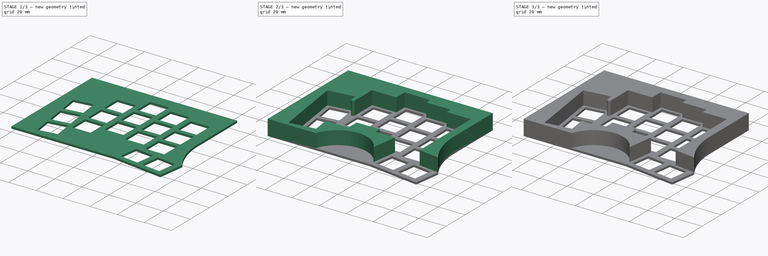
[diagram: build sequence overview — one tinted view per stage of 3, left to right]
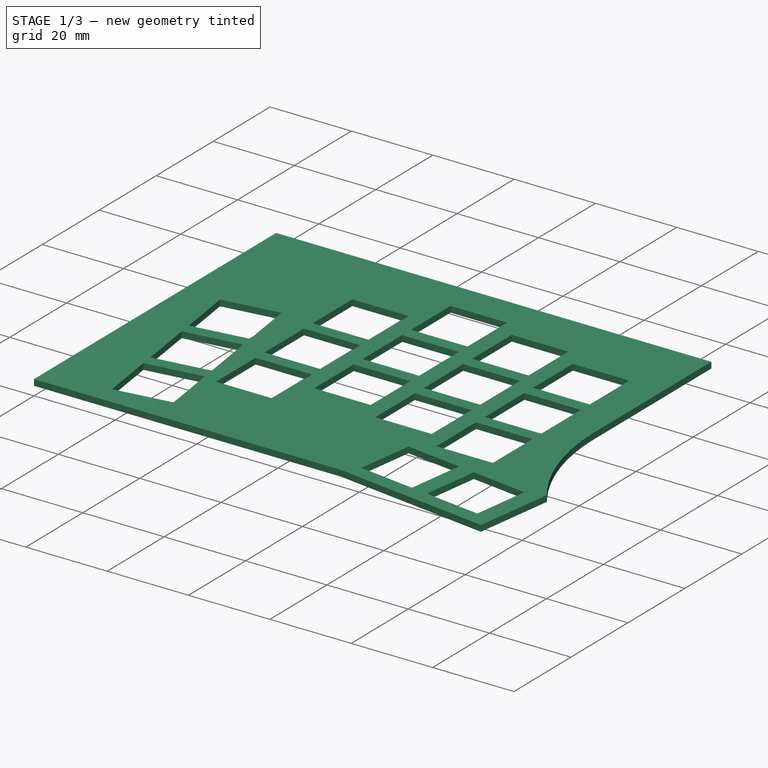
[diagram: stage 1 of 3 — iso view after this stage's code; geometry added in this stage tinted green]
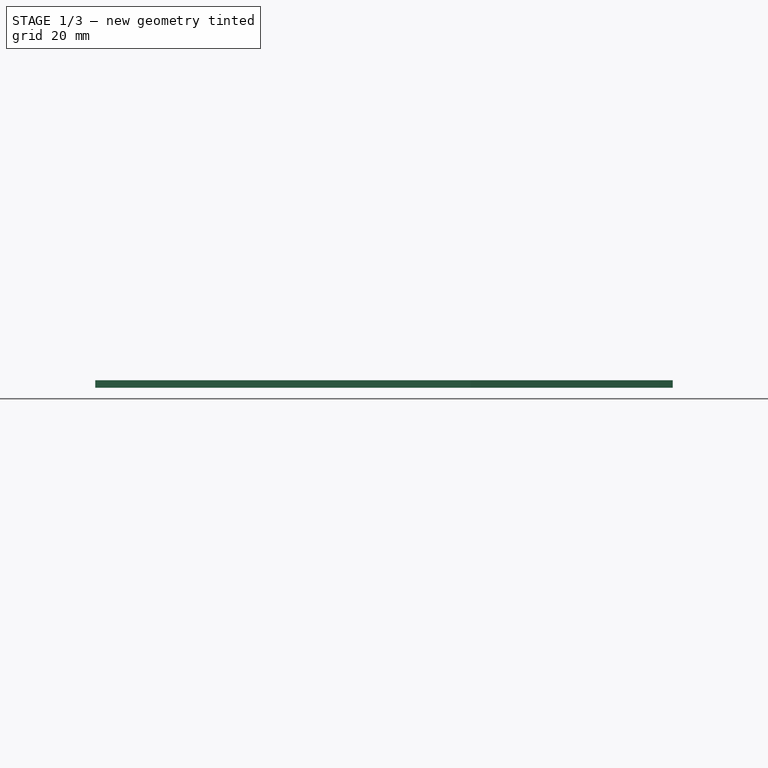
[diagram: stage 1 of 3 — front view after this stage's code; geometry added in this stage tinted green]
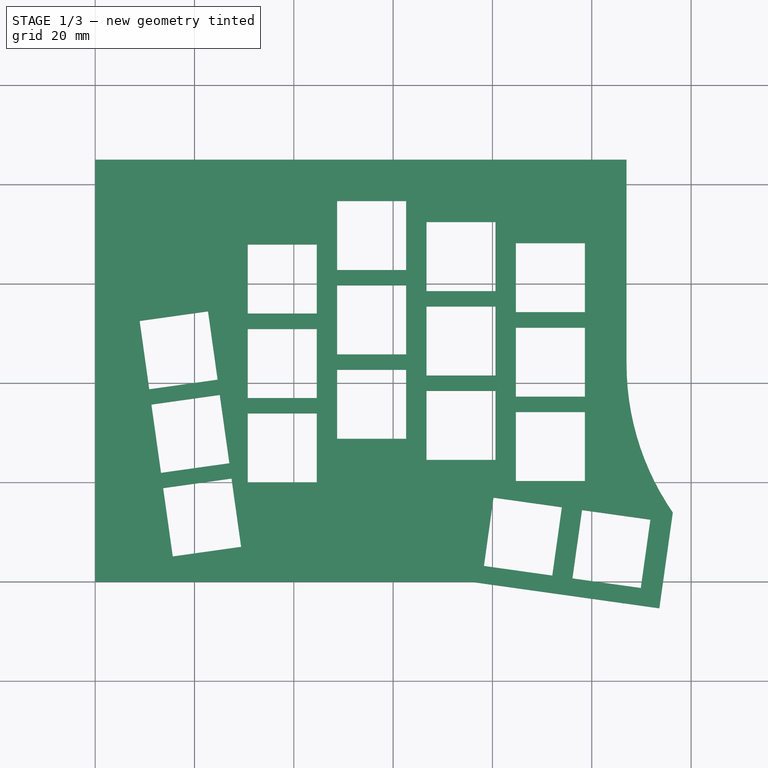
[diagram: stage 1 of 3 — top view after this stage's code; geometry added in this stage tinted green]
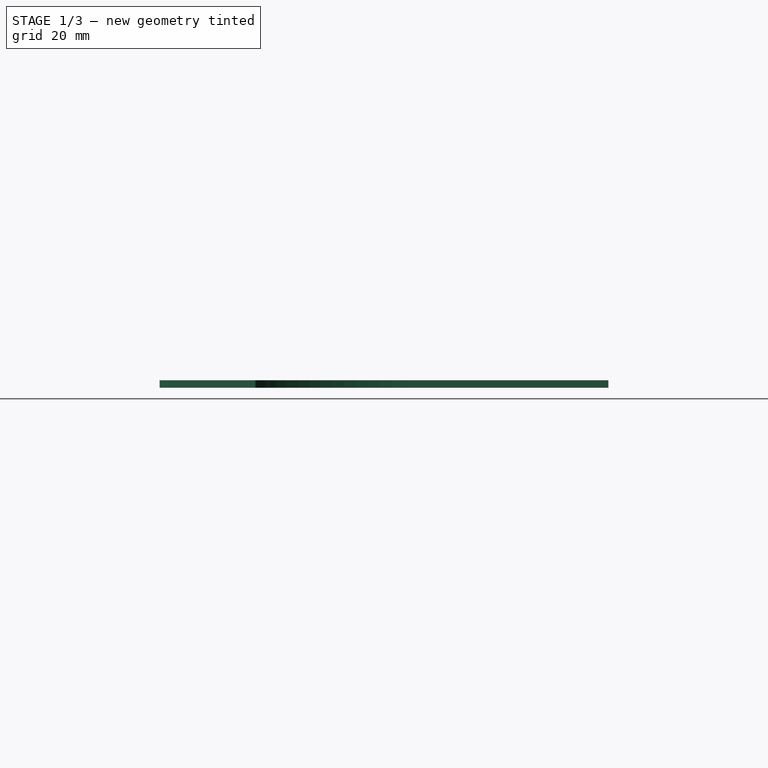
[diagram: stage 1 of 3 — right view after this stage's code; geometry added in this stage tinted green]
FCSTD DOCUMENT  (FreeCAD 1.0R39285 (Git))
Label: wave_case
License: All rights reserved
LicenseURL: https://en.wikipedia.org/wiki/All_rights_reserved
objects: Sketcher::SketchObject×4, PartDesign::Pocket×3, PartDesign::Pad×2, App::VarSet×1, PartDesign::Body×1
note: 24 computed .brp shape members not serialized (recipe doc carries the construction recipe); baked Part::Feature solids carry a one-line shape summary decoded from their .brp

FEATURE [App::VarSet] VarSet
  ChocHoleHeight = 13.9
  ChocHoleWidth = 13.9
  ChocHorizontalSpacing = 5
  ChocVerticalSpacing = 0.2
  KeycapHorizontalClearance = 2.52
  KeycapVerticalClearance = 2.05
FEATURE [Sketcher::SketchObject] Sketch002
  ArcFitTolerance = 1e-06
  FullyConstrained = false
  MakeInternals = false
  expr: Constraints[316] = VarSet.KeycapVerticalClearance
  expr: Constraints[317] = VarSet.KeycapHorizontalClearance
  expr: Constraints[318] = VarSet.KeycapVerticalClearance
  expr: Constraints[319] = VarSet.KeycapHorizontalClearance
  expr: Constraints[320] = VarSet.KeycapVerticalClearance
  expr: Constraints[321] = VarSet.KeycapHorizontalClearance
  expr: Constraints[322] = VarSet.KeycapHorizontalClearance
  expr: Constraints[323] = VarSet.KeycapHorizontalClearance
  expr: Constraints[324] = VarSet.KeycapVerticalClearance
  expr: Constraints[334] = VarSet.KeycapVerticalClearance
  expr: Constraints[335] = VarSet.KeycapHorizontalClearance
  expr: Constraints[337] = VarSet.KeycapHorizontalClearance
  expr: Constraints[339] = VarSet.KeycapVerticalClearance
  expr: Constraints[343] = VarSet.KeycapHorizontalClearance
  expr: Constraints[344] = VarSet.KeycapVerticalClearance
  expr: Constraints[345] = VarSet.KeycapHorizontalClearance
  expr: Constraints[346] = VarSet.KeycapVerticalClearance
  expr: Constraints[347] = VarSet.KeycapVerticalClearance
  expr: Constraints[348] = VarSet.KeycapHorizontalClearance
  expr: Constraints[353] = VarSet.KeycapHorizontalClearance
  expr: Constraints[354] = VarSet.KeycapVerticalClearance
  sketch-geometry (135):
    g0: LineSegment StartX=13.4096 StartY=2.70473 StartZ=0 EndX=32.1653 EndY=5.34067 EndZ=0
    g1: LineSegment StartX=32.1653 StartY=5.34067 StartZ=0 EndX=30.3932 EndY=17.95 EndZ=0
    g2: LineSegment StartX=6.17261 StartY=54.1987 StartZ=0 EndX=13.4096 EndY=2.70473 EndZ=0
    g3: LineSegment StartX=24.9283 StartY=56.8346 StartZ=0 EndX=25.6457 EndY=51.7296 EndZ=0
    g4: LineSegment StartX=24.9283 StartY=56.8346 StartZ=0 EndX=6.17261 EndY=54.1987 EndZ=0
    g5: LineSegment StartX=30.3932 StartY=17.95 StartZ=0 EndX=47.14 EndY=17.95 EndZ=0
    g6: LineSegment StartX=47.14 StartY=17.95 StartZ=0 EndX=47.14 EndY=26.73 EndZ=0
    g7: LineSegment StartX=28.2 StartY=51.9082 StartZ=0 EndX=28.2 EndY=69.95 EndZ=0
    g8: LineSegment StartX=46.2 StartY=69.95 StartZ=0 EndX=28.2 EndY=69.95 EndZ=0
    g9: LineSegment StartX=47.14 StartY=26.73 StartZ=0 EndX=64.2 EndY=26.73 EndZ=0
    g10: LineSegment StartX=65.14 StartY=74.48 StartZ=0 EndX=65.14 EndY=78.73 EndZ=0
    g11: LineSegment StartX=65.14 StartY=78.73 StartZ=0 EndX=46.2 EndY=78.73 EndZ=0
    g12: LineSegment StartX=46.2 StartY=78.73 StartZ=0 EndX=46.2 EndY=69.95 EndZ=0
    g13: LineSegment StartX=64.2 StartY=22.48 StartZ=0 EndX=78.4497 EndY=22.48 EndZ=0
    g14: LineSegment StartX=64.2 StartY=26.73 StartZ=0 EndX=64.2 EndY=22.48 EndZ=0
    g15: LineSegment StartX=83.14 StartY=70.23 StartZ=0 EndX=83.14 EndY=74.48 EndZ=0
    g16: LineSegment StartX=83.14 StartY=74.48 StartZ=0 EndX=65.14 EndY=74.48 EndZ=0
    g17: LineSegment StartX=101.14 StartY=16.0645 StartZ=0 EndX=101.14 EndY=70.23 EndZ=0
    g18: LineSegment StartX=101.14 StartY=70.23 StartZ=0 EndX=83.14 EndY=70.23 EndZ=0
    g19: LineSegment StartX=78.4497 StartY=22.48 StartZ=0 EndX=75.7852 EndY=3.52111 EndZ=0
    g20: ArcOfCircle CenterX=56.4906 CenterY=-7.04857 CenterZ=0 NormalX=0 NormalY=0 NormalZ=1 AngleXU=0 Radius=22 StartAngle=0.501156 EndAngle=2.81545
    g21: Circle CenterX=8.07 CenterY=77.9 CenterZ=0 NormalX=0 NormalY=0 NormalZ=-1 AngleXU=0 Radius=5.1
    g22: Circle CenterX=98.87 CenterY=77.9 CenterZ=0 NormalX=0 NormalY=0 NormalZ=-1 AngleXU=0 Radius=5.1
    g23: Circle CenterX=6.57 CenterY=7.1 CenterZ=0 NormalX=0 NormalY=0 NormalZ=-1 AngleXU=0 Radius=5.1
    g24: LineSegment StartX=75.5469 StartY=0 StartZ=0 EndX=113.609 EndY=-5.34925 EndZ=0
    g25: LineSegment StartX=113.609 StartY=-5.34925 StartZ=0 EndX=116.318 EndY=13.9313 EndZ=0
    g26: ArcOfCircle CenterX=159.721 CenterY=43.86 CenterZ=0 NormalX=0 NormalY=0 NormalZ=1 AngleXU=0 Radius=52.7212 StartAngle=3.14159 EndAngle=3.74528
    g27: LineSegment StartX=0 StartY=0 StartZ=0 EndX=75.5469 EndY=0 EndZ=0
    g28: LineSegment StartX=107 StartY=43.86 StartZ=0 EndX=107 EndY=85 EndZ=0
    g29: LineSegment StartX=107 StartY=85 StartZ=0 EndX=0 EndY=85 EndZ=0
    g30: LineSegment StartX=0 StartY=85 StartZ=0 EndX=0 EndY=0 EndZ=0
    g31: LineSegment StartX=98.62 StartY=54.28 StartZ=0 EndX=98.62 EndY=68.18 EndZ=0
    g32: LineSegment StartX=84.72 StartY=68.18 StartZ=0 EndX=84.72 EndY=54.28 EndZ=0
    g33: LineSegment StartX=84.72 StartY=54.28 StartZ=0 EndX=98.62 EndY=54.28 EndZ=0
    g34: LineSegment StartX=98.62 StartY=54.28 StartZ=0 EndX=98.62 EndY=68.18 EndZ=0
    g35: LineSegment StartX=98.62 StartY=68.18 StartZ=0 EndX=84.72 EndY=68.18 EndZ=0
    g36: LineSegment StartX=84.72 StartY=68.18 StartZ=0 EndX=84.72 EndY=54.28 EndZ=0
    g37: LineSegment [constr] StartX=84.72 StartY=54.28 StartZ=0 EndX=84.72 EndY=51.18 EndZ=0
    g38: LineSegment StartX=84.72 StartY=51.18 StartZ=0 EndX=84.72 EndY=37.28 EndZ=0
    g39: LineSegment StartX=84.72 StartY=37.28 StartZ=0 EndX=98.62 EndY=37.28 EndZ=0
    g40: LineSegment StartX=98.62 StartY=37.28 StartZ=0 EndX=98.62 EndY=51.18 EndZ=0
    g41: LineSegment StartX=98.62 StartY=51.18 StartZ=0 EndX=84.72 EndY=51.18 EndZ=0
    g42: LineSegment StartX=84.72 StartY=34.18 StartZ=0 EndX=84.72 EndY=20.28 EndZ=0
    g43: LineSegment StartX=84.72 StartY=20.28 StartZ=0 EndX=98.62 EndY=20.28 EndZ=0
    g44: LineSegment StartX=98.62 StartY=20.28 StartZ=0 EndX=98.62 EndY=34.18 EndZ=0
    g45: LineSegment StartX=98.62 StartY=34.18 StartZ=0 EndX=84.72 EndY=34.18 EndZ=0
    g46: LineSegment [constr] StartX=84.72 StartY=37.28 StartZ=0 EndX=84.72 EndY=34.18 EndZ=0
    g47: LineSegment StartX=66.72 StartY=72.43 StartZ=0 EndX=66.72 EndY=58.53 EndZ=0
    g48: LineSegment StartX=66.72 StartY=58.53 StartZ=0 EndX=80.62 EndY=58.53 EndZ=0
    g49: LineSegment StartX=80.62 StartY=58.53 StartZ=0 EndX=80.62 EndY=72.43 EndZ=0
    g50: LineSegment StartX=80.62 StartY=72.43 StartZ=0 EndX=66.72 EndY=72.43 EndZ=0
    g51: LineSegment StartX=66.72 StartY=55.43 StartZ=0 EndX=66.72 EndY=41.53 EndZ=0
    g52: LineSegment StartX=66.72 StartY=41.53 StartZ=0 EndX=80.62 EndY=41.53 EndZ=0
    g53: LineSegment StartX=80.62 StartY=41.53 StartZ=0 EndX=80.62 EndY=55.43 EndZ=0
    g54: LineSegment StartX=80.62 StartY=55.43 StartZ=0 EndX=66.72 EndY=55.43 EndZ=0
    g55: LineSegment StartX=66.72 StartY=38.43 StartZ=0 EndX=66.72 EndY=24.53 EndZ=0
    g56: LineSegment StartX=66.72 StartY=24.53 StartZ=0 EndX=80.62 EndY=24.53 EndZ=0
    g57: LineSegment StartX=80.62 StartY=24.53 StartZ=0 EndX=80.62 EndY=38.43 EndZ=0
    g58: LineSegment StartX=80.62 StartY=38.43 StartZ=0 EndX=66.72 EndY=38.43 EndZ=0
    g59: LineSegment [constr] StartX=66.72 StartY=58.53 StartZ=0 EndX=66.72 EndY=55.43 EndZ=0
    g60: LineSegment [constr] StartX=66.72 StartY=41.53 StartZ=0 EndX=66.72 EndY=38.43 EndZ=0
    g61: LineSegment StartX=48.72 StartY=76.68 StartZ=0 EndX=48.72 EndY=62.78 EndZ=0
    g62: LineSegment StartX=48.72 StartY=62.78 StartZ=0 EndX=62.62 EndY=62.78 EndZ=0
    g63: LineSegment StartX=62.62 StartY=62.78 StartZ=0 EndX=62.62 EndY=76.68 EndZ=0
    g64: LineSegment StartX=62.62 StartY=76.68 StartZ=0 EndX=48.72 EndY=76.68 EndZ=0
    g65: LineSegment StartX=48.72 StartY=59.68 StartZ=0 EndX=48.72 EndY=45.78 EndZ=0
    g66: LineSegment StartX=48.72 StartY=45.78 StartZ=0 EndX=62.62 EndY=45.78 EndZ=0
    g67: LineSegment StartX=62.62 StartY=45.78 StartZ=0 EndX=62.62 EndY=59.68 EndZ=0
    g68: LineSegment StartX=62.62 StartY=59.68 StartZ=0 EndX=48.72 EndY=59.68 EndZ=0
    g69: LineSegment StartX=48.72 StartY=42.68 StartZ=0 EndX=48.72 EndY=28.78 EndZ=0
    g70: LineSegment StartX=48.72 StartY=28.78 StartZ=0 EndX=62.62 EndY=28.78 EndZ=0
    g71: LineSegment StartX=62.62 StartY=28.78 StartZ=0 EndX=62.62 EndY=42.68 EndZ=0
    g72: LineSegment StartX=62.62 StartY=42.68 StartZ=0 EndX=48.72 EndY=42.68 EndZ=0
    g73: LineSegment [constr] StartX=48.72 StartY=62.78 StartZ=0 EndX=48.72 EndY=59.68 EndZ=0
    g74: LineSegment [constr] StartX=48.72 StartY=45.78 StartZ=0 EndX=48.72 EndY=42.68 EndZ=0
    g75: LineSegment [constr] StartX=84.72 StartY=68.18 StartZ=0 EndX=80.62 EndY=68.18 EndZ=0
    g76: LineSegment [constr] StartX=80.62 StartY=72.43 StartZ=0 EndX=80.62 EndY=68.18 EndZ=0
    g77: LineSegment [constr] StartX=66.72 StartY=72.43 StartZ=0 EndX=62.62 EndY=72.43 EndZ=0
    g78: LineSegment [constr] StartX=62.62 StartY=76.68 StartZ=0 EndX=62.62 EndY=72.43 EndZ=0
    g79: LineSegment StartX=30.72 StartY=67.9 StartZ=0 EndX=30.72 EndY=54 EndZ=0
    g80: LineSegment StartX=30.72 StartY=54 StartZ=0 EndX=44.62 EndY=54 EndZ=0
    g81: LineSegment StartX=44.62 StartY=54 StartZ=0 EndX=44.62 EndY=67.9 EndZ=0
    g82: LineSegment StartX=44.62 StartY=67.9 StartZ=0 EndX=30.72 EndY=67.9 EndZ=0
    g83: LineSegment StartX=30.72 StartY=50.9 StartZ=0 EndX=30.72 EndY=37 EndZ=0
    g84: LineSegment StartX=30.72 StartY=37 StartZ=0 EndX=44.62 EndY=37 EndZ=0
    g85: LineSegment StartX=44.62 StartY=37 StartZ=0 EndX=44.62 EndY=50.9 EndZ=0
    g86: LineSegment StartX=44.62 StartY=50.9 StartZ=0 EndX=30.72 EndY=50.9 EndZ=0
    g87: LineSegment StartX=30.72 StartY=33.9 StartZ=0 EndX=30.72 EndY=20 EndZ=0
    g88: LineSegment StartX=30.72 StartY=20 StartZ=0 EndX=44.62 EndY=20 EndZ=0
    g89: LineSegment StartX=44.62 StartY=20 StartZ=0 EndX=44.62 EndY=33.9 EndZ=0
    g90: LineSegment StartX=44.62 StartY=33.9 StartZ=0 EndX=30.72 EndY=33.9 EndZ=0
    g91: LineSegment [constr] StartX=30.72 StartY=54 StartZ=0 EndX=30.72 EndY=50.9 EndZ=0
    g92: LineSegment [constr] StartX=30.72 StartY=37 StartZ=0 EndX=30.72 EndY=33.9 EndZ=0
    g93: LineSegment StartX=8.95339 StartY=52.5193 StartZ=0 EndX=10.8879 EndY=38.7546 EndZ=0
    g94: LineSegment StartX=10.8879 StartY=38.7546 StartZ=0 EndX=24.6526 EndY=40.6891 EndZ=0
    g95: LineSegment StartX=24.6526 StartY=40.6891 StartZ=0 EndX=22.7181 EndY=54.4538 EndZ=0
    g96: LineSegment StartX=22.7181 StartY=54.4538 StartZ=0 EndX=8.95339 EndY=52.5193 EndZ=0
    g97: LineSegment StartX=11.3193 StartY=35.6848 StartZ=0 EndX=13.2538 EndY=21.9201 EndZ=0
    g98: LineSegment StartX=13.2538 StartY=21.9201 StartZ=0 EndX=27.0186 EndY=23.8546 EndZ=0
    g99: LineSegment StartX=27.0186 StartY=23.8546 StartZ=0 EndX=25.0841 EndY=37.6193 EndZ=0
    g100: LineSegment StartX=25.0841 StartY=37.6193 StartZ=0 EndX=11.3193 EndY=35.6848 EndZ=0
    g101: LineSegment StartX=13.6853 StartY=18.8502 StartZ=0 EndX=15.6198 EndY=5.08549 EndZ=0
    g102: LineSegment StartX=15.6198 StartY=5.08549 StartZ=0 EndX=29.3845 EndY=7.02 EndZ=0
    g103: LineSegment StartX=29.3845 StartY=7.02 StartZ=0 EndX=27.45 EndY=20.7847 EndZ=0
    g104: LineSegment StartX=27.45 StartY=20.7847 StartZ=0 EndX=13.6853 EndY=18.8502 EndZ=0
    g105: LineSegment [constr] StartX=10.8879 StartY=38.7546 StartZ=0 EndX=11.3193 EndY=35.6848 EndZ=0
    g106: LineSegment [constr] StartX=13.2538 StartY=21.9201 StartZ=0 EndX=13.6853 EndY=18.8502 EndZ=0
    g107: LineSegment StartX=80.2152 StartY=16.9351 StartZ=0 EndX=78.2807 EndY=3.17039 EndZ=0
    g108: LineSegment StartX=78.2807 StartY=3.17039 StartZ=0 EndX=92.0454 EndY=1.23588 EndZ=0
    g109: LineSegment StartX=92.0454 StartY=1.23588 StartZ=0 EndX=93.9799 EndY=15.0006 EndZ=0
    g110: LineSegment StartX=93.9799 StartY=15.0006 StartZ=0 EndX=80.2152 EndY=16.9351 EndZ=0
    g111: LineSegment StartX=98.04 StartY=14.43 StartZ=0 EndX=96.1055 EndY=0.665274 EndZ=0
    g112: LineSegment StartX=96.1055 StartY=0.665274 StartZ=0 EndX=109.87 EndY=-1.26923 EndZ=0
    g113: LineSegment StartX=109.87 StartY=-1.26923 StartZ=0 EndX=111.805 EndY=12.4955 EndZ=0
    g114: LineSegment StartX=111.805 StartY=12.4955 StartZ=0 EndX=98.04 EndY=14.43 EndZ=0
    g115: LineSegment [constr] StartX=44.62 StartY=67.9 StartZ=0 EndX=48.72 EndY=67.9 EndZ=0
    g116: LineSegment [constr] StartX=48.72 StartY=76.68 StartZ=0 EndX=48.72 EndY=67.9 EndZ=0
    g117: LineSegment [constr] StartX=62.62 StartY=76.68 StartZ=0 EndX=62.62 EndY=72.43 EndZ=0
    g118: LineSegment [constr] StartX=93.9799 StartY=15.0006 StartZ=0 EndX=98.04 EndY=14.43 EndZ=0
    g119: LineSegment [constr] StartX=92.0454 StartY=1.23588 StartZ=0 EndX=91.5555 EndY=-2.24986 EndZ=0
    g120: LineSegment [constr] StartX=109.87 StartY=-1.26923 StartZ=0 EndX=114.099 EndY=-1.8635 EndZ=0
    g121: LineSegment [constr] StartX=101.14 StartY=70.23 StartZ=0 EndX=107 EndY=70.23 EndZ=0
    g122: LineSegment [constr] StartX=111.805 StartY=12.4955 StartZ=0 EndX=112.09 EndY=14.5255 EndZ=0
    g123: LineSegment [constr] StartX=15.6198 StartY=5.08549 StartZ=0 EndX=15.9051 EndY=3.05544 EndZ=0
    g124: LineSegment [constr] StartX=22.7181 StartY=54.4538 StartZ=0 EndX=22.4328 EndY=56.4839 EndZ=0
    g125: LineSegment [constr] StartX=22.7181 StartY=54.4538 StartZ=0 EndX=25.2136 EndY=54.8046 EndZ=0
    g126: LineSegment [constr] StartX=8.95339 StartY=52.5193 StartZ=0 EndX=6.45791 EndY=52.1686 EndZ=0
    g127: LineSegment [constr] StartX=29.3845 StartY=7.02 StartZ=0 EndX=31.88 EndY=7.37072 EndZ=0
    g128: LineSegment [constr] StartX=78.2807 StartY=3.17039 StartZ=0 EndX=75.7852 EndY=3.52111 EndZ=0
    g129: LineSegment StartX=101.14 StartY=16.0645 StartZ=0 EndX=116.318 EndY=13.9313 EndZ=0
    g130: ArcOfCircle CenterX=26.9166 CenterY=51.9082 CenterZ=0 NormalX=0 NormalY=0 NormalZ=1 AngleXU=0 Radius=1.28337 StartAngle=3.28122 EndAngle=6.28319
    g131: GeomPoint [constr] X=28.2 Y=33.5551 Z=0
    g132: Circle CenterX=71.5196 CenterY=16.5778 CenterZ=0 NormalX=0 NormalY=0 NormalZ=1 AngleXU=0 Radius=5.1
    g133: LineSegment [constr] StartX=71.9302 StartY=21.6612 StartZ=0 EndX=71.9963 EndY=22.48 EndZ=0
    g134: LineSegment [constr] StartX=76.5968 StartY=16.0964 StartZ=0 EndX=77.54 EndY=16.0069 EndZ=0
  constraints (382):
    c: Coincident(g24,g27)
    c: Coincident(g35,g36)
    c: Coincident(g33,g36)
    c: Coincident(g34,g35)
    c: Coincident(g33,g34)
    c: DistanceX(g32,g31) = 13.9
    c: DistanceY(g31,g31) = 13.9
    c: Vertical(g37)
    c: Distance(g37,g37) = 3.1
    c: Coincident(g31,g34)
    c: Coincident(g32,g35)
    c: Coincident(g32,g33)
    c: Coincident(g32,g37)
    c: Coincident(g31,g33)
    c: Horizontal(g35)
    c: Vertical(g31)
    c: Horizontal(g33)
    c: Vertical(g32)
    c: DistanceX(g29,g28) = 107
    c: DistanceY(g27,g29) = 85
    c: Coincident(g38,g39)
    c: Coincident(g39,g40)
    c: Coincident(g40,g41)
    c: Coincident(g41,g38)
    c: Vertical(g38)
    c: Vertical(g40)
    c: Horizontal(g39)
    c: Horizontal(g41)
    c: Coincident(g38,g37)
    c: Vertical(g28)
    c: Horizontal(g29)
    c: Coincident(g42,g43)
    c: Coincident(g43,g44)
    c: Coincident(g44,g45)
    c: Coincident(g45,g42)
    c: Vertical(g42)
    c: Vertical(g44)
    c: Horizontal(g43)
    c: Horizontal(g45)
    c: Coincident(g46,g38)
    c: Coincident(g46,g42)
    c: Vertical(g46)
    c: Vertical(g30)
    c: Horizontal(g27)
    c: Coincident(g47,g48)
    c: Coincident(g48,g49)
    c: Coincident(g49,g50)
    c: Coincident(g50,g47)
    c: Vertical(g47)
    c: Vertical(g49)
    c: Horizontal(g48)
    c: Horizontal(g50)
    c: Coincident(g51,g52)
    c: Coincident(g52,g53)
    c: Coincident(g53,g54)
    c: Coincident(g54,g51)
    c: Vertical(g51)
    c: Vertical(g53)
    c: Horizontal(g52)
    c: Horizontal(g54)
    c: Coincident(g55,g56)
    c: Coincident(g56,g57)
    c: Coincident(g57,g58)
    c: Coincident(g58,g55)
    c: Vertical(g55)
    c: Vertical(g57)
    c: Horizontal(g56)
    c: Horizontal(g58)
    c: Coincident(g59,g47)
    c: Coincident(g59,g51)
    c: Coincident(g60,g51)
    c: Coincident(g60,g55)
    c: Vertical(g59)
    c: Vertical(g60)
    c: Coincident(g61,g62)
    c: Coincident(g62,g63)
    c: Coincident(g63,g64)
    c: Coincident(g64,g61)
    c: Vertical(g61)
    c: Vertical(g63)
    c: Horizontal(g62)
    c: Horizontal(g64)
    c: Coincident(g65,g66)
    c: Coincident(g66,g67)
    c: Coincident(g67,g68)
    c: Coincident(g68,g65)
    c: Vertical(g65)
    c: Vertical(g67)
    c: Horizontal(g66)
    c: Horizontal(g68)
    c: Coincident(g69,g70)
    c: Coincident(g70,g71)
    c: Coincident(g71,g72)
    c: Coincident(g72,g69)
    c: Vertical(g69)
    c: Vertical(g71)
    c: Horizontal(g70)
    c: Horizontal(g72)
    c: Coincident(g73,g61)
    c: Coincident(g73,g65)
    c: Coincident(g74,g65)
    c: Coincident(g74,g69)
    c: Vertical(g73)
    c: Vertical(g74)
    c: Coincident(g75,g32)
    c: PointOnObject(g75,g49)
    c: Horizontal(g75)
    c: Coincident(g76,g49)
    c: Coincident(g76,g75)
    c: DistanceY(g76,g76) = 4.25
    c: DistanceX(g75,g75) = 4.1
    c: Coincident(g77,g47)
    c: PointOnObject(g77,g63)
    c: Horizontal(g77)
    c: Coincident(g78,g63)
    c: Coincident(g78,g77)
    c: Coincident(g79,g80)
    c: Coincident(g80,g81)
    c: Coincident(g81,g82)
    c: Coincident(g82,g79)
    c: Vertical(g79)
    c: Vertical(g81)
    c: Horizontal(g80)
    c: Horizontal(g82)
    c: Coincident(g83,g84)
    c: Coincident(g84,g85)
    c: Coincident(g85,g86)
    c: Coincident(g86,g83)
    c: Vertical(g83)
    c: Vertical(g85)
    c: Horizontal(g84)
    c: Horizontal(g86)
    c: Coincident(g87,g88)
    c: Coincident(g88,g89)
    c: Coincident(g89,g90)
    c: Coincident(g90,g87)
    c: Vertical(g87)
    c: Vertical(g89)
    c: Horizontal(g88)
    c: Horizontal(g90)
    c: Coincident(g91,g79)
    c: Coincident(g91,g83)
    c: Coincident(g92,g83)
    c: Coincident(g92,g87)
    c: Vertical(g91)
    c: Vertical(g92)
    c: Coincident(g93,g94)
    c: Coincident(g94,g95)
    c: Coincident(g95,g96)
    c: Coincident(g96,g93)
    c: Coincident(g97,g98)
    c: Coincident(g98,g99)
    c: Coincident(g99,g100)
    c: Coincident(g100,g97)
    c: Coincident(g101,g102)
    c: Coincident(g102,g103)
    c: Coincident(g103,g104)
    c: Coincident(g104,g101)
    c: Coincident(g105,g93)
    c: Coincident(g105,g97)
    c: Coincident(g106,g97)
    c: Coincident(g106,g101)
    c: Coincident(g107,g108)
    c: Coincident(g108,g109)
    c: Coincident(g109,g110)
    c: Coincident(g110,g107)
    c: Coincident(g111,g112)
    c: Coincident(g112,g113)
    c: Coincident(g113,g114)
    c: Coincident(g114,g111)
    c: Equal(g96,g100)
    c: Equal(g100,g104)
    c: Equal(g104,g82)
    c: Equal(g82,g86)
    c: Equal(g86,g90)
    c: Equal(g90,g114)
    c: Equal(g114,g110)
    c: Equal(g110,g64)
    c: Equal(g64,g68)
    c: Equal(g68,g72)
    c: Equal(g72,g50)
    c: Equal(g50,g54)
    c: Equal(g54,g58)
    c: Equal(g58,g45)
    c: Equal(g45,g41)
    c: Equal(g41,g35)
    c: Equal(g95,g99)
    c: Equal(g99,g103)
    c: Equal(g103,g81)
    c: Equal(g81,g85)
    c: Equal(g85,g89)
    c: Equal(g89,g113)
    c: Equal(g113,g109)
    c: Equal(g109,g63)
    c: Equal(g63,g67)
    c: Equal(g67,g71)
    c: Equal(g71,g49)
    c: Equal(g49,g53)
    c: Equal(g53,g57)
    c: Equal(g57,g44)
    c: Equal(g44,g40)
    c: Equal(g40,g31)
    c: Equal(g105,g106)
    c: Equal(g106,g91)
    c: Equal(g91,g92)
    c: Equal(g92,g73)
    c: Equal(g73,g74)
    c: Equal(g74,g59)
    c: Equal(g59,g60)
    c: Equal(g60,g37)
    c: Equal(g37,g46)
    c: Coincident(g115,g81)
    c: PointOnObject(g115,g61)
    c: Horizontal(g115)
    c: Coincident(g116,g61)
    c: Coincident(g116,g115)
    c: DistanceY(g116,g116) = 8.78
    c: Coincident(g117,g63)
    c: Coincident(g117,g77)
    c: Equal(g76,g117)
    c: Parallel(g93,g95)
    c: Parallel(g95,g105)
    c: Parallel(g105,g97)
    c: Parallel(g97,g99)
    c: Parallel(g99,g106)
    c: Parallel(g106,g101)
    c: Parallel(g101,g103)
    c: Parallel(g96,g94)
    c: Parallel(g94,g100)
    c: Parallel(g100,g98)
    c: Parallel(g98,g104)
    c: Parallel(g104,g102)
    c: Angle(g79,g95) = 0.139626
    c: Angle(g93,g96) = 1.5708
    c: DistanceY(g102,g87) = 12.98
    c: DistanceX(g103,g87) = 3.27
    c: Equal(g77,g115)
    c: Equal(g77,g75)
    c: Parallel(g110,g108)
    c: Parallel(g114,g112)
    c: Parallel(g113,g111)
    c: Parallel(g109,g107)
    c: Parallel(g110,g114)
    c: Parallel(g111,g109)
    c: Coincident(g118,g109)
    c: Coincident(g118,g111)
    c: Parallel(g110,g118)
    c: Angle(g110,g43) = 0.139626
    c: Angle(g107,g110) = 1.5708
    c: DistanceX(g111,g43) = 0.58
    c: DistanceY(g111,g43) = 5.85
    c: Equal(g118,g75)
    c: Tangent(g26,g28) = 1.5708
    c: Coincident(g17,g18)
    c: Coincident(g15,g18)
    c: Coincident(g15,g16)
    c: Coincident(g10,g16)
    c: Coincident(g10,g11)
    c: Coincident(g11,g12)
    c: Coincident(g8,g12)
    c: Coincident(g7,g8)
    c: Coincident(g2,g4)
    c: Coincident(g0,g2)
    c: Coincident(g0,g1)
    c: Coincident(g1,g5)
    c: Coincident(g5,g6)
    c: Coincident(g6,g9)
    c: Coincident(g9,g14)
    c: Coincident(g13,g14)
    c: Coincident(g13,g19)
    c: Coincident(g19,g20)
    c: PointOnObject(g20,g27)
    c: Radius(g20) = 22
    c: Parallel(g112,g24)
    c: Coincident(g25,g26)
    c: Parallel(g113,g25)
    c: Vertical(g17)
    c: Horizontal(g18)
    c: Vertical(g15)
    c: Horizontal(g16)
    c: Vertical(g10)
    c: Horizontal(g11)
    c: Vertical(g12)
    c: Horizontal(g8)
    c: Vertical(g7)
    c: Horizontal(g5)
    c: Vertical(g6)
    c: Horizontal(g9)
    c: Vertical(g14)
    c: Horizontal(g13)
    c: Parallel(g19,g107)
    c: Parallel(g95,g3)
    c: Parallel(g3,g2)
    c: Parallel(g1,g3)
    c: Coincident(g27,g30)
    c: Coincident(g119,g108)
    c: PointOnObject(g119,g24)
    c: Parallel(g119,g109)
    c: Distance(g119,g119) = 3.52
    c: PointOnObject(g120,g25)
    c: Parallel(g112,g120)
    c: Coincident(g120,g112)
    c: Distance(g120,g120) = 4.27
    c: Coincident(g24,g25)
    c: Coincident(g29,g30)
    c: PointOnObject(g121,g17)
    c: PointOnObject(g121,g28)
    c: Horizontal(g121)
    c: DistanceX(g121,g121) = 5.86
    c: Coincident(g122,g113)
    c: Parallel(g122,g113)
    c: Coincident(g123,g101)
    c: PointOnObject(g123,g0)
    c: Parallel(g123,g101)
    c: DistanceY(g28,g28) = 41.14
    c: Coincident(g28,g29)
    c: DistanceY(g31,g17) = 2.05
    c: DistanceX(g31,g17) = 2.52
    c: DistanceY(g49,g15) = 2.05
    c: DistanceX(g49,g15) = 2.52
    c: DistanceY(g63,g10) = 2.05
    c: DistanceX(g63,g10) = 2.52
    c: DistanceX(g11,g61) = 2.52
    c: DistanceX(g7,g79) = 2.52
    c: DistanceY(g79,g7) = 2.05
    c: Coincident(g3,g4)
    c: Coincident(g124,g95)
    c: PointOnObject(g124,g4)
    c: Coincident(g125,g95)
    c: PointOnObject(g125,g3)
    c: Coincident(g126,g93)
    c: PointOnObject(g126,g2)
    c: Parallel(g96,g125)
    c: Parallel(g125,g126)
    c: Distance(g124,g124) = 2.05
    c: Distance(g125,g125) = 2.52
    c: Parallel(g4,g96)
    c: Distance(g126,g126) = 2.52
    c: Parallel(g0,g102)
    c: Distance(g123,g123) = 2.05
    c: Coincident(g127,g102)
    c: PointOnObject(g127,g1)
    c: Parallel(g127,g102)
    c: Distance(g127,g127) = 2.52
    c: DistanceY(g5,g88) = 2.05
    c: DistanceX(g88,g5) = 2.52
    c: DistanceY(g6,g69) = 2.05
    c: DistanceY(g13,g55) = 2.05
    c: DistanceX(g9,g55) = 2.52
    c: DistanceY(g10,g28) = 6.27
    c: Coincident(g128,g107)
    c: Coincident(g128,g19)
    c: Parallel(g128,g108)
    c: Distance(g128,g128) = 2.52
    c: Distance(g122,g122) = 2.05
    c: Coincident(g129,g17)
    c: Coincident(g129,g25)
    c: Parallel(g129,g114)
    c: PointOnObject(g122,g129)
    c: DistanceY(g21,g29) = 7.1
    c: DistanceX(g29,g21) = 8.07
    c: Diameter(g21) = 10.2
    c: DistanceX(g22,g28) = 8.13
    c: DistanceY(g22,g28) = 7.1
    c: DistanceX(g27,g23) = 6.57
    c: Distance(g23,g27) = 7.1
    c: Equal(g23,g22)
    c: Equal(g22,g21)
    c: PointOnObject(g17,g121)
    c: Parallel(g124,g95)
    c: Coincident(g27,g-1)
    c: PointOnObject(g131,g7)
    c: PointOnObject(g131,g3)
    c: Tangent(g7,g130) = -1.5708
    c: Tangent(g3,g130) = -1.5708
    c: Equal(g132,g22)
    c: PointOnObject(g133,g132)
    c: PointOnObject(g133,g13)
    c: Perpendicular(g132,g133)
    c: PointOnObject(g134,g132)
    c: PointOnObject(g134,g19)
    c: Perpendicular(g132,g134)
FEATURE [PartDesign::Pad] Pad
  Direction = (0,0,1)
  Length = 1.5
  Length2 = 10
  Profile = -> Sketch002 [Edge5,Edge6,Edge7,Edge1,Edge2,Edge3,Edge4]
  ReferenceAxis = -> Sketch002 [N_Axis]
  Refine = true
  Suppressed = false
  Type = 0
FEATURE [Sketcher::SketchObject] Sketch
  ArcFitTolerance = 1e-06
  AttachmentSupport = -> [Pad]
  ExternalGeometry = -> [Sketch002]
  FullyConstrained = true
  MakeInternals = false
  MapMode = 5
  Placement = pos=(0,0,1.5) rot=(0,0,1;0rad)
  sketch-geometry (68):
    g0: LineSegment StartX=8.95339 StartY=52.5193 StartZ=0 EndX=10.8879 EndY=38.7546 EndZ=0
    g1: LineSegment StartX=10.8879 StartY=38.7546 StartZ=0 EndX=24.6526 EndY=40.6891 EndZ=0
    g2: LineSegment StartX=24.6526 StartY=40.6891 StartZ=0 EndX=22.7181 EndY=54.4538 EndZ=0
    g3: LineSegment StartX=22.7181 StartY=54.4538 StartZ=0 EndX=8.95339 EndY=52.5193 EndZ=0
    g4: LineSegment StartX=11.3193 StartY=35.6848 StartZ=0 EndX=13.2538 EndY=21.9201 EndZ=0
    g5: LineSegment StartX=13.2538 StartY=21.9201 StartZ=0 EndX=27.0186 EndY=23.8546 EndZ=0
    g6: LineSegment StartX=27.0186 StartY=23.8546 StartZ=0 EndX=25.0841 EndY=37.6193 EndZ=0
    g7: LineSegment StartX=25.0841 StartY=37.6193 StartZ=0 EndX=11.3193 EndY=35.6848 EndZ=0
    g8: LineSegment StartX=13.6853 StartY=18.8502 StartZ=0 EndX=15.6198 EndY=5.08549 EndZ=0
    g9: LineSegment StartX=15.6198 StartY=5.08549 StartZ=0 EndX=29.3845 EndY=7.02 EndZ=0
    g10: LineSegment StartX=29.3845 StartY=7.02 StartZ=0 EndX=27.45 EndY=20.7847 EndZ=0
    g11: LineSegment StartX=27.45 StartY=20.7847 StartZ=0 EndX=13.6853 EndY=18.8502 EndZ=0
    g12: LineSegment StartX=80.2152 StartY=16.9351 StartZ=0 EndX=93.9799 EndY=15.0006 EndZ=0
    g13: LineSegment StartX=93.9799 StartY=15.0006 StartZ=0 EndX=92.0454 EndY=1.23588 EndZ=0
    g14: LineSegment StartX=92.0454 StartY=1.23588 StartZ=0 EndX=78.2807 EndY=3.17039 EndZ=0
    g15: LineSegment StartX=78.2807 StartY=3.17039 StartZ=0 EndX=80.2152 EndY=16.9351 EndZ=0
    g16: LineSegment StartX=98.04 StartY=14.43 StartZ=0 EndX=111.805 EndY=12.4955 EndZ=0
    g17: LineSegment StartX=111.805 StartY=12.4955 StartZ=0 EndX=109.87 EndY=-1.26923 EndZ=0
    g18: LineSegment StartX=109.87 StartY=-1.26923 StartZ=0 EndX=96.1055 EndY=0.665274 EndZ=0
    g19: LineSegment StartX=96.1055 StartY=0.665274 StartZ=0 EndX=98.04 EndY=14.43 EndZ=0
    g20: LineSegment StartX=30.72 StartY=67.9 StartZ=0 EndX=30.72 EndY=54 EndZ=0
    g21: LineSegment StartX=30.72 StartY=54 StartZ=0 EndX=44.62 EndY=54 EndZ=0
    g22: LineSegment StartX=44.62 StartY=54 StartZ=0 EndX=44.62 EndY=67.9 EndZ=0
    g23: LineSegment StartX=44.62 StartY=67.9 StartZ=0 EndX=30.72 EndY=67.9 EndZ=0
    g24: LineSegment StartX=30.72 StartY=50.9 StartZ=0 EndX=30.72 EndY=37 EndZ=0
    g25: LineSegment StartX=30.72 StartY=37 StartZ=0 EndX=44.62 EndY=37 EndZ=0
    g26: LineSegment StartX=44.62 StartY=37 StartZ=0 EndX=44.62 EndY=50.9 EndZ=0
    g27: LineSegment StartX=44.62 StartY=50.9 StartZ=0 EndX=30.72 EndY=50.9 EndZ=0
    g28: LineSegment StartX=30.72 StartY=33.9 StartZ=0 EndX=30.72 EndY=20 EndZ=0
    g29: LineSegment StartX=30.72 StartY=20 StartZ=0 EndX=44.62 EndY=20 EndZ=0
    g30: LineSegment StartX=44.62 StartY=20 StartZ=0 EndX=44.62 EndY=33.9 EndZ=0
    g31: LineSegment StartX=44.62 StartY=33.9 StartZ=0 EndX=30.72 EndY=33.9 EndZ=0
    g32: LineSegment StartX=48.72 StartY=76.68 StartZ=0 EndX=48.72 EndY=62.78 EndZ=0
    g33: LineSegment StartX=48.72 StartY=62.78 StartZ=0 EndX=62.62 EndY=62.78 EndZ=0
    g34: LineSegment StartX=62.62 StartY=62.78 StartZ=0 EndX=62.62 EndY=76.68 EndZ=0
    g35: LineSegment StartX=62.62 StartY=76.68 StartZ=0 EndX=48.72 EndY=76.68 EndZ=0
    g36: LineSegment StartX=48.72 StartY=59.68 StartZ=0 EndX=48.72 EndY=45.78 EndZ=0
    g37: LineSegment StartX=48.72 StartY=45.78 StartZ=0 EndX=62.62 EndY=45.78 EndZ=0
    g38: LineSegment StartX=62.62 StartY=45.78 StartZ=0 EndX=62.62 EndY=59.68 EndZ=0
    g39: LineSegment StartX=62.62 StartY=59.68 StartZ=0 EndX=48.72 EndY=59.68 EndZ=0
    g40: LineSegment StartX=48.72 StartY=42.68 StartZ=0 EndX=48.72 EndY=28.78 EndZ=0
    g41: LineSegment StartX=48.72 StartY=28.78 StartZ=0 EndX=62.62 EndY=28.78 EndZ=0
    g42: LineSegment StartX=62.62 StartY=28.78 StartZ=0 EndX=62.62 EndY=42.68 EndZ=0
    g43: LineSegment StartX=62.62 StartY=42.68 StartZ=0 EndX=48.72 EndY=42.68 EndZ=0
    g44: LineSegment StartX=66.72 StartY=72.43 StartZ=0 EndX=66.72 EndY=58.53 EndZ=0
    g45: LineSegment StartX=66.72 StartY=58.53 StartZ=0 EndX=80.62 EndY=58.53 EndZ=0
    g46: LineSegment StartX=80.62 StartY=58.53 StartZ=0 EndX=80.62 EndY=72.43 EndZ=0
    g47: LineSegment StartX=80.62 StartY=72.43 StartZ=0 EndX=66.72 EndY=72.43 EndZ=0
    g48: LineSegment StartX=66.72 StartY=55.43 StartZ=0 EndX=66.72 EndY=41.53 EndZ=0
    g49: LineSegment StartX=66.72 StartY=41.53 StartZ=0 EndX=80.62 EndY=41.53 EndZ=0
    g50: LineSegment StartX=80.62 StartY=41.53 StartZ=0 EndX=80.62 EndY=55.43 EndZ=0
    g51: LineSegment StartX=80.62 StartY=55.43 StartZ=0 EndX=66.72 EndY=55.43 EndZ=0
    g52: LineSegment StartX=66.72 StartY=38.43 StartZ=0 EndX=66.72 EndY=24.53 EndZ=0
    g53: LineSegment StartX=66.72 StartY=24.53 StartZ=0 EndX=80.62 EndY=24.53 EndZ=0
    g54: LineSegment StartX=80.62 StartY=24.53 StartZ=0 EndX=80.62 EndY=38.43 EndZ=0
    g55: LineSegment StartX=80.62 StartY=38.43 StartZ=0 EndX=66.72 EndY=38.43 EndZ=0
    g56: LineSegment StartX=84.72 StartY=68.18 StartZ=0 EndX=84.72 EndY=54.28 EndZ=0
    g57: LineSegment StartX=84.72 StartY=54.28 StartZ=0 EndX=98.62 EndY=54.28 EndZ=0
    g58: LineSegment StartX=98.62 StartY=54.28 StartZ=0 EndX=98.62 EndY=68.18 EndZ=0
    g59: LineSegment StartX=98.62 StartY=68.18 StartZ=0 EndX=84.72 EndY=68.18 EndZ=0
    g60: LineSegment StartX=84.72 StartY=51.18 StartZ=0 EndX=84.72 EndY=37.28 EndZ=0
    g61: LineSegment StartX=84.72 StartY=37.28 StartZ=0 EndX=98.62 EndY=37.28 EndZ=0
    g62: LineSegment StartX=98.62 StartY=37.28 StartZ=0 EndX=98.62 EndY=51.18 EndZ=0
    g63: LineSegment StartX=98.62 StartY=51.18 StartZ=0 EndX=84.72 EndY=51.18 EndZ=0
    g64: LineSegment StartX=84.72 StartY=34.18 StartZ=0 EndX=84.72 EndY=20.28 EndZ=0
    g65: LineSegment StartX=84.72 StartY=20.28 StartZ=0 EndX=98.62 EndY=20.28 EndZ=0
    g66: LineSegment StartX=98.62 StartY=20.28 StartZ=0 EndX=98.62 EndY=34.18 EndZ=0
    g67: LineSegment StartX=98.62 StartY=34.18 StartZ=0 EndX=84.72 EndY=34.18 EndZ=0
  constraints (160):
    c: Coincident(g-7,g0)
    c: Coincident(g0,g-9)
    c: Coincident(g0,g1)
    c: Coincident(g1,g-9)
    c: Coincident(g1,g2)
    c: Coincident(g2,g-8)
    c: Coincident(g2,g3)
    c: Coincident(g3,g0)
    c: Coincident(g-11,g4)
    c: Coincident(g4,g-12)
    c: Coincident(g4,g5)
    c: Coincident(g5,g-13)
    c: Coincident(g5,g6)
    c: Coincident(g6,g-13)
    c: Coincident(g6,g7)
    c: Coincident(g7,g4)
    c: Coincident(g-15,g8)
    c: Coincident(g8,g-16)
    c: Coincident(g8,g9)
    c: Coincident(g9,g-17)
    c: Coincident(g9,g10)
    c: Coincident(g10,g-17)
    c: Coincident(g10,g11)
    c: Coincident(g11,g8)
    c: Coincident(g-64,g12)
    c: Coincident(g12,g-66)
    c: Coincident(g12,g13)
    c: Coincident(g13,g-66)
    c: Coincident(g13,g14)
    c: Coincident(g14,g-65)
    c: Coincident(g14,g15)
    c: Coincident(g15,g12)
    c: Coincident(g-68,g16)
    c: Coincident(g16,g-70)
    c: Coincident(g16,g17)
    c: Coincident(g17,g-70)
    c: Coincident(g17,g18)
    c: Coincident(g18,g19)
    c: Coincident(g19,g16)
    c: Coincident(g18,g-69)
    c: Coincident(g20,g21)
    c: Coincident(g21,g22)
    c: Coincident(g22,g23)
    c: Coincident(g23,g20)
    c: Vertical(g20)
    c: Vertical(g22)
    c: Horizontal(g21)
    c: Horizontal(g23)
    c: Coincident(g20,g-4)
    c: Coincident(g21,g-26)
    c: Coincident(g24,g25)
    c: Coincident(g25,g26)
    c: Coincident(g26,g27)
    c: Coincident(g27,g24)
    c: Vertical(g24)
    c: Vertical(g26)
    c: Horizontal(g25)
    c: Horizontal(g27)
    c: Coincident(g24,g-25)
    c: Coincident(g25,g-23)
    c: Coincident(g28,g29)
    c: Coincident(g29,g30)
    c: Coincident(g30,g31)
    c: Coincident(g31,g28)
    c: Vertical(g28)
    c: Vertical(g30)
    c: Horizontal(g29)
    c: Horizontal(g31)
    c: Coincident(g29,g-21)
    c: Coincident(g32,g33)
    c: Coincident(g33,g34)
    c: Coincident(g34,g35)
    c: Coincident(g35,g32)
    c: Vertical(g32)
    c: Vertical(g34)
    c: Horizontal(g33)
    c: Horizontal(g35)
    c: Coincident(g32,g-28)
    c: Coincident(g33,g-30)
    c: Coincident(g36,g37)
    c: Coincident(g37,g38)
    c: Coincident(g38,g39)
    c: Coincident(g39,g36)
    c: Vertical(g36)
    c: Vertical(g38)
    c: Horizontal(g37)
    c: Horizontal(g39)
    c: Coincident(g36,g-32)
    c: Coincident(g37,g-34)
    c: Coincident(g-20,g28)
    c: Coincident(g40,g41)
    c: Coincident(g41,g42)
    c: Coincident(g42,g43)
    c: Coincident(g43,g40)
    c: Vertical(g40)
    c: Vertical(g42)
    c: Horizontal(g41)
    c: Horizontal(g43)
    c: Coincident(g40,g-36)
    c: Coincident(g41,g-38)
    c: Coincident(g44,g45)
    c: Coincident(g45,g46)
    c: Coincident(g46,g47)
    c: Coincident(g47,g44)
    c: Vertical(g44)
    c: Vertical(g46)
    c: Horizontal(g45)
    c: Horizontal(g47)
    c: Coincident(g44,g-49)
    c: Coincident(g45,g-50)
    c: Coincident(g48,g49)
    c: Coincident(g49,g50)
    c: Coincident(g50,g51)
    c: Coincident(g51,g48)
    c: Vertical(g48)
    c: Vertical(g50)
    c: Horizontal(g49)
    c: Horizontal(g51)
    c: Coincident(g48,g-46)
    c: Coincident(g49,g-44)
    c: Coincident(g52,g53)
    c: Coincident(g53,g54)
    c: Coincident(g54,g55)
    c: Coincident(g55,g52)
    c: Vertical(g52)
    c: Vertical(g54)
    c: Horizontal(g53)
    c: Horizontal(g55)
    c: Coincident(g56,g57)
    c: Coincident(g57,g58)
    c: Coincident(g58,g59)
    c: Coincident(g59,g56)
    c: Vertical(g56)
    c: Vertical(g58)
    c: Horizontal(g57)
    c: Horizontal(g59)
    c: Coincident(g56,g-52)
    c: Coincident(g57,g-54)
    c: Coincident(g60,g61)
    c: Coincident(g61,g62)
    c: Coincident(g62,g63)
    c: Coincident(g63,g60)
    c: Vertical(g60)
    c: Vertical(g62)
    c: Horizontal(g61)
    c: Horizontal(g63)
    c: Coincident(g60,g-56)
    c: Coincident(g61,g-58)
    c: Coincident(g64,g65)
    c: Coincident(g65,g66)
    c: Coincident(g66,g67)
    c: Coincident(g67,g64)
    c: Vertical(g64)
    c: Vertical(g66)
    c: Horizontal(g65)
    c: Horizontal(g67)
    c: Coincident(g64,g-60)
    c: Coincident(g65,g-62)
    c: Coincident(g52,g-40)
    c: Coincident(g53,g-42)
FEATURE [PartDesign::Pocket] Pocket
  BaseFeature = -> Pad
  Direction = (0,0,-1)
  Length = 5
  Length2 = 5
  Profile = -> Sketch
  ReferenceAxis = -> Sketch [N_Axis]
  Refine = true
  Suppressed = false
  Type = 1
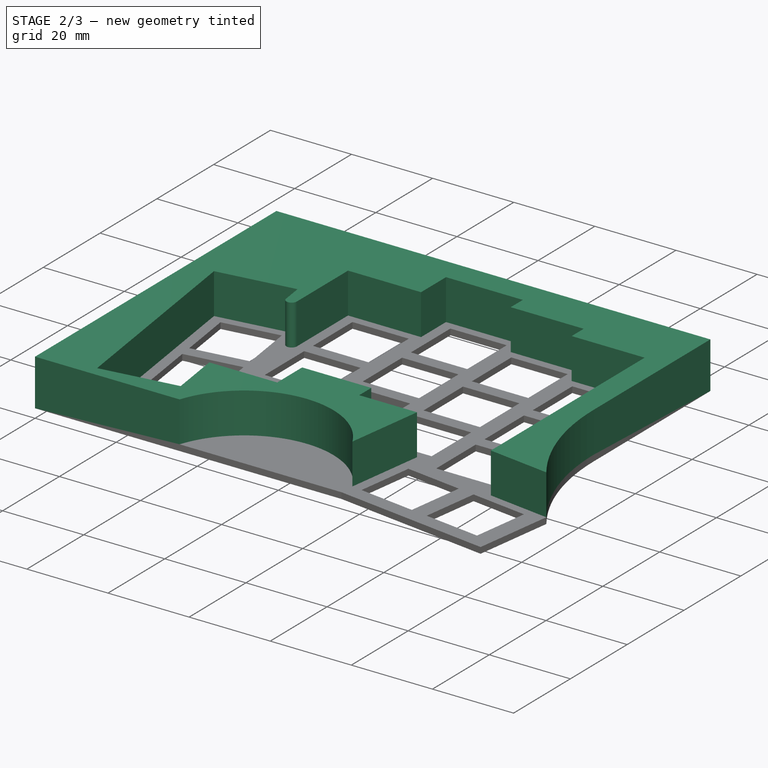
[diagram: stage 2 of 3 — iso view after this stage's code; geometry added in this stage tinted green]
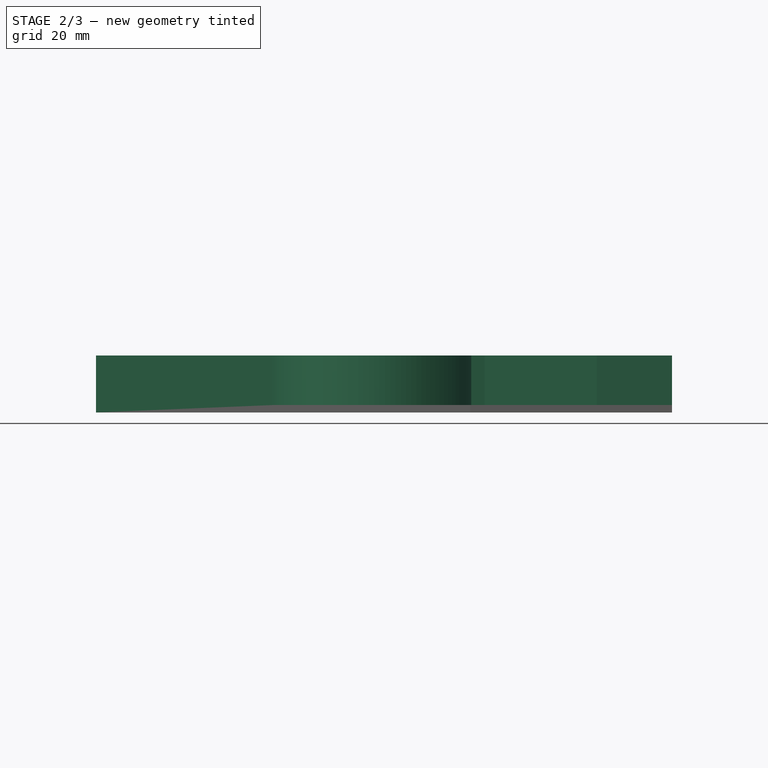
[diagram: stage 2 of 3 — front view after this stage's code; geometry added in this stage tinted green]
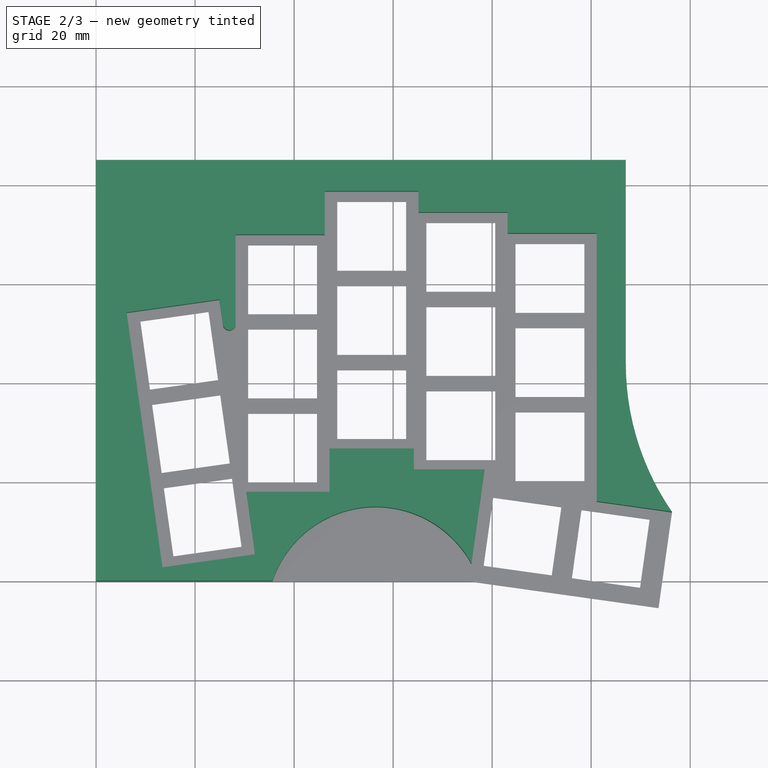
[diagram: stage 2 of 3 — top view after this stage's code; geometry added in this stage tinted green]
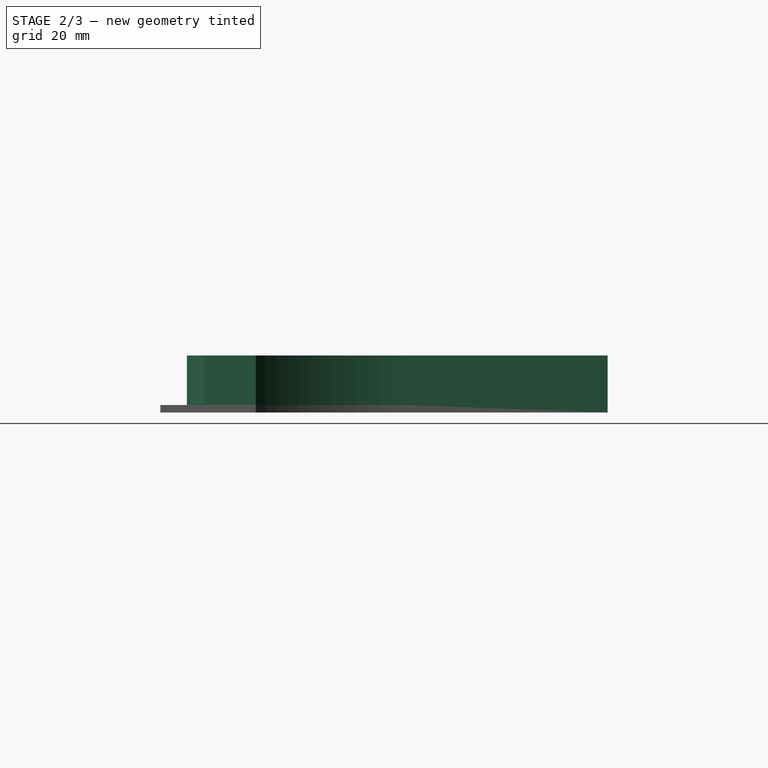
[diagram: stage 2 of 3 — right view after this stage's code; geometry added in this stage tinted green]
FEATURE [Sketcher::SketchObject] Sketch003
  ArcFitTolerance = 1e-06
  AttachmentSupport = -> [Pocket]
  ExternalGeometry = -> [Sketch002]
  FullyConstrained = false
  MakeInternals = false
  MapMode = 5
  Placement = pos=(0,0,1.5) rot=(0,0,1;0rad)
  sketch-geometry (28):
    g0: LineSegment StartX=0 StartY=85 StartZ=0 EndX=0 EndY=0 EndZ=0
    g1: LineSegment StartX=0 StartY=0 StartZ=0 EndX=35.6503 EndY=3.135e-13 EndZ=0
    g2: LineSegment StartX=78.4497 StartY=22.48 StartZ=0 EndX=64.2 EndY=22.48 EndZ=0
    g3: LineSegment StartX=64.2 StartY=22.48 StartZ=0 EndX=64.2 EndY=26.73 EndZ=0
    g4: LineSegment StartX=64.2 StartY=26.73 StartZ=0 EndX=47.14 EndY=26.73 EndZ=0
    g5: LineSegment StartX=47.14 StartY=26.73 StartZ=0 EndX=47.14 EndY=17.95 EndZ=0
    g6: LineSegment StartX=47.14 StartY=17.95 StartZ=0 EndX=30.3932 EndY=17.95 EndZ=0
    g7: LineSegment StartX=30.3932 StartY=17.95 StartZ=0 EndX=32.1653 EndY=5.34067 EndZ=0
    g8: LineSegment StartX=32.1653 StartY=5.34067 StartZ=0 EndX=13.4096 EndY=2.70473 EndZ=0
    g9: LineSegment StartX=13.4096 StartY=2.70473 StartZ=0 EndX=6.17261 EndY=54.1987 EndZ=0
    g10: LineSegment StartX=6.17261 StartY=54.1987 StartZ=0 EndX=24.9283 EndY=56.8346 EndZ=0
    g11: LineSegment StartX=24.9283 StartY=56.8346 StartZ=0 EndX=25.6457 EndY=51.7296 EndZ=0
    g12: LineSegment StartX=28.2 StartY=69.95 StartZ=0 EndX=46.2 EndY=69.95 EndZ=0
    g13: LineSegment StartX=46.2 StartY=69.95 StartZ=0 EndX=46.2 EndY=78.73 EndZ=0
    g14: LineSegment StartX=46.2 StartY=78.73 StartZ=0 EndX=65.14 EndY=78.73 EndZ=0
    g15: LineSegment StartX=65.14 StartY=78.73 StartZ=0 EndX=65.14 EndY=74.48 EndZ=0
    g16: LineSegment StartX=65.14 StartY=74.48 StartZ=0 EndX=83.14 EndY=74.48 EndZ=0
    g17: LineSegment StartX=83.14 StartY=74.48 StartZ=0 EndX=83.14 EndY=70.23 EndZ=0
    g18: LineSegment StartX=83.14 StartY=70.23 StartZ=0 EndX=101.14 EndY=70.23 EndZ=0
    g19: LineSegment StartX=101.14 StartY=70.23 StartZ=0 EndX=101.14 EndY=16.0645 EndZ=0
    g20: LineSegment StartX=101.14 StartY=16.0645 StartZ=0 EndX=116.318 EndY=13.9313 EndZ=0
    g21: LineSegment StartX=107 StartY=43.86 StartZ=0 EndX=107 EndY=85 EndZ=0
    g22: LineSegment StartX=107 StartY=85 StartZ=0 EndX=0 EndY=85 EndZ=0
    g23: LineSegment StartX=78.4497 StartY=22.48 StartZ=0 EndX=75.7852 EndY=3.52111 EndZ=0
    g24: ArcOfCircle CenterX=159.721 CenterY=43.86 CenterZ=0 NormalX=0 NormalY=0 NormalZ=1 AngleXU=0 Radius=52.7212 StartAngle=3.14159 EndAngle=3.74528
    g25: ArcOfCircle CenterX=56.4906 CenterY=-7.04856 CenterZ=0 NormalX=0 NormalY=0 NormalZ=1 AngleXU=0 Radius=22 StartAngle=0.501156 EndAngle=2.81545
    g26: LineSegment StartX=28.2 StartY=69.95 StartZ=0 EndX=28.2 EndY=51.9082 EndZ=0
    g27: ArcOfCircle CenterX=26.9161 CenterY=51.9161 CenterZ=0 NormalX=0 NormalY=0 NormalZ=1 AngleXU=0 Radius=1.28394 StartAngle=3.28732 EndAngle=6.27709
  constraints (58):
    c: Coincident(g0,g-31)
    c: Coincident(g0,g1)
    c: Coincident(g2,g-11)
    c: Coincident(g2,g3)
    c: Coincident(g3,g-10)
    c: Coincident(g3,g4)
    c: Coincident(g4,g-9)
    c: Coincident(g4,g5)
    c: Coincident(g5,g-8)
    c: Coincident(g5,g6)
    c: Coincident(g6,g-7)
    c: Coincident(g6,g7)
    c: Coincident(g7,g-6)
    c: Coincident(g7,g8)
    c: Coincident(g8,g-5)
    c: Coincident(g8,g9)
    c: Coincident(g9,g-4)
    c: Coincident(g9,g10)
    c: Coincident(g10,g-30)
    c: Coincident(g10,g11)
    c: Coincident(g11,g-30)
    c: Coincident(g12,g-28)
    c: Coincident(g12,g13)
    c: Coincident(g13,g-27)
    c: Coincident(g13,g14)
    c: Coincident(g14,g-26)
    c: Coincident(g14,g15)
    c: Coincident(g15,g-25)
    c: Coincident(g15,g16)
    c: Coincident(g16,g-24)
    c: Coincident(g16,g17)
    c: Coincident(g17,g-23)
    c: Coincident(g17,g18)
    c: Coincident(g18,g-22)
    c: Coincident(g18,g19)
    c: Coincident(g19,g-18)
    c: Coincident(g19,g20)
    c: Coincident(g20,g-19)
    c: Coincident(g21,g-21)
    c: Coincident(g21,g22)
    c: Coincident(g22,g-31)
    c: Coincident(g22,g0)
    c: Coincident(g23,g2)
    c: Coincident(g2,g-12)
    c: Coincident(g21,g-20)
    c: Coincident(g1,g-13)
    c: Coincident(g24,g21)
    c: Coincident(g24,g20)
    c: Tangent(g-19,g24)
    c: Coincident(g23,g-13)
    c: Coincident(g25,g1)
    c: Coincident(g25,g23)
    c: Tangent(g25,g-13)
    c: Coincident(g26,g12)
    c: Coincident(g26,g-32)
    c: Coincident(g27,g26)
    c: Coincident(g27,g11)
    c: Coincident(g12,g-29)
FEATURE [PartDesign::Pad] Pad001
  BaseFeature = -> Pocket
  Direction = (0,0,1)
  Length = 10
  Length2 = 10
  Profile = -> Sketch003
  ReferenceAxis = -> Sketch003 [N_Axis]
  Refine = true
  Suppressed = false
  Type = 0
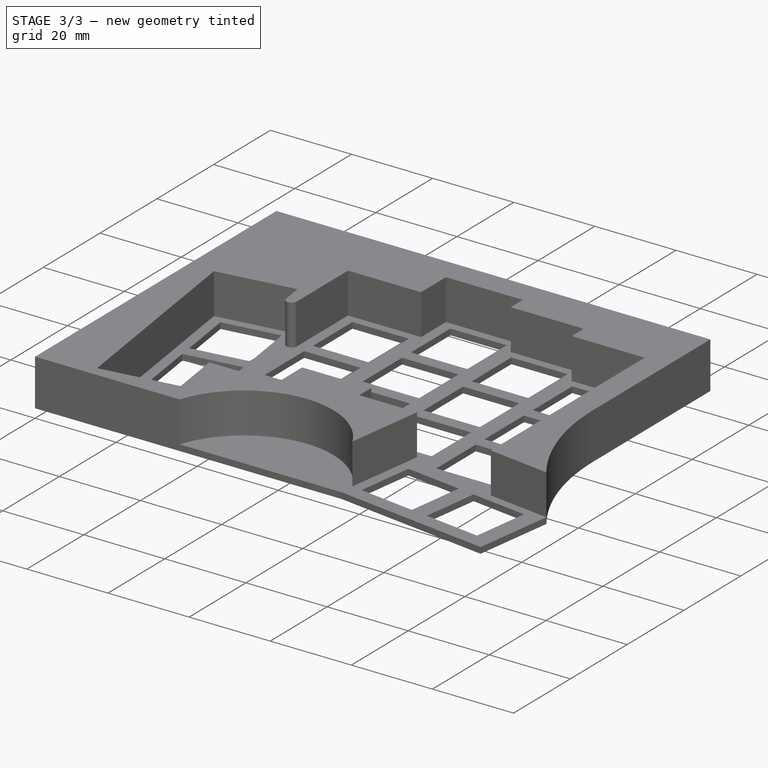
[diagram: stage 3 of 3 — iso view after this stage's code; geometry added in this stage tinted green]
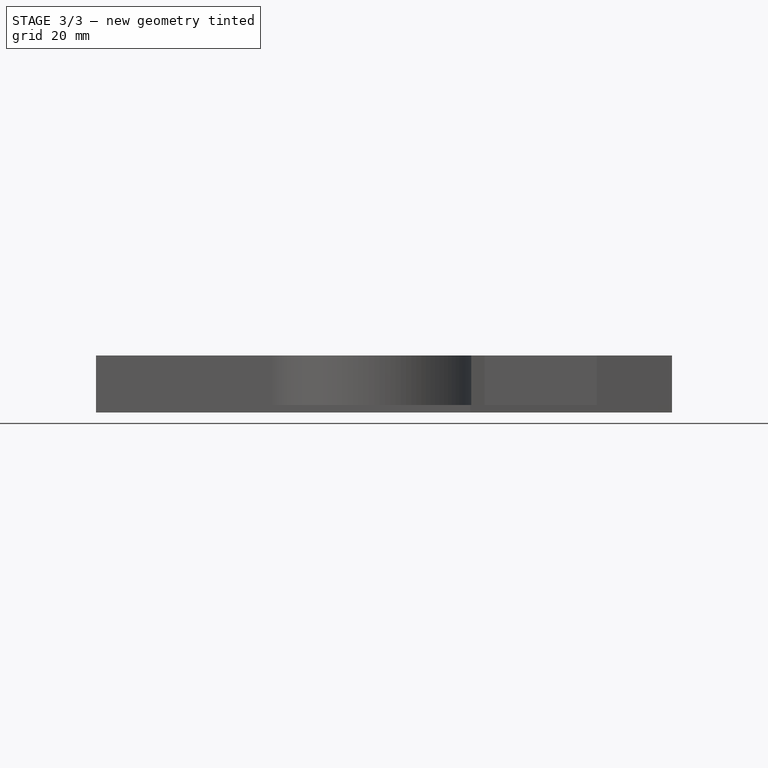
[diagram: stage 3 of 3 — front view after this stage's code; geometry added in this stage tinted green]
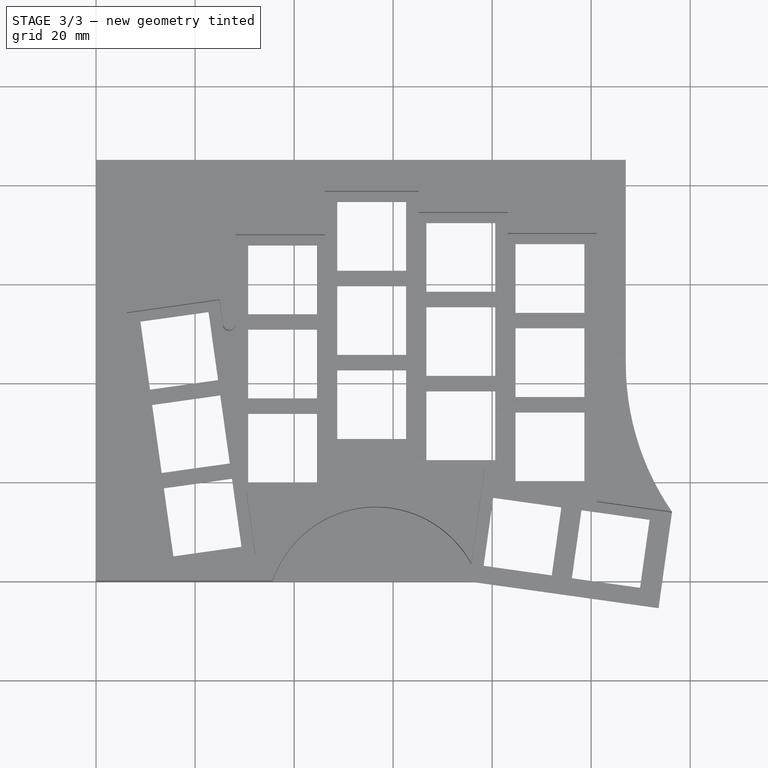
[diagram: stage 3 of 3 — top view after this stage's code; geometry added in this stage tinted green]
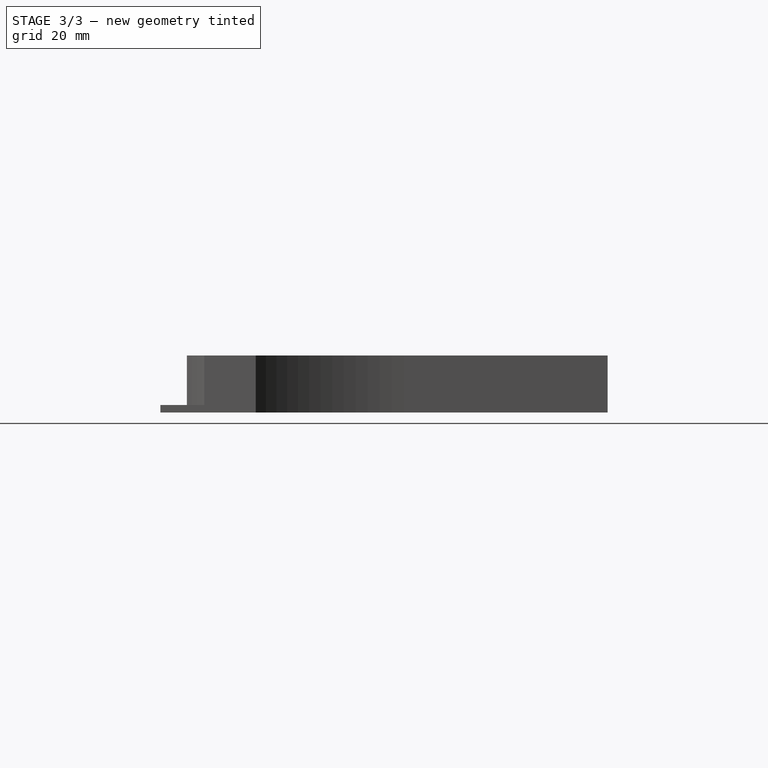
[diagram: stage 3 of 3 — right view after this stage's code; geometry added in this stage tinted green]
FEATURE [Sketcher::SketchObject] Sketch004
  ArcFitTolerance = 1e-06
  AttachmentSupport = -> [Pad001]
  ExternalGeometry = -> [Sketch002]
  FullyConstrained = false
  MakeInternals = false
  MapMode = 5
  Placement = pos=(0,0,0) rot=(1,0,0;3.14159rad)
  sketch-geometry (24):
    g0: LineSegment StartX=4.76489 StartY=-57.3838 StartZ=0 EndX=25.2762 EndY=-60.5633 EndZ=0
    g1: LineSegment StartX=25.2762 StartY=-60.5633 StartZ=0 EndX=24.8398 EndY=-72.9699 EndZ=0
    g2: LineSegment StartX=24.8398 StartY=-72.9699 StartZ=0 EndX=43.2937 EndY=-72.9699 EndZ=0
    g3: LineSegment StartX=43.2937 StartY=-72.9699 StartZ=0 EndX=43.7301 EndY=-82.8826 EndZ=0
    g4: LineSegment StartX=43.7301 StartY=-82.8826 StartZ=0 EndX=16.2362 EndY=-82.8826 EndZ=0
    g5: LineSegment StartX=16.2362 StartY=-82.8826 StartZ=0 EndX=17.3584 EndY=-73.0945 EndZ=0
    g6: LineSegment StartX=17.3584 StartY=-73.0945 StartZ=0 EndX=4.01676 EndY=-71.2242 EndZ=0
    g7: LineSegment StartX=4.01676 StartY=-71.2242 StartZ=0 EndX=4.76489 EndY=-57.3838 EndZ=0
    g8: LineSegment StartX=1.71002 StartY=-14.0545 StartZ=0 EndX=1.71002 EndY=-42.4211 EndZ=0
    g9: LineSegment StartX=1.71002 StartY=-42.4211 StartZ=0 EndX=6.51053 EndY=-42.4211 EndZ=0
    g10: LineSegment StartX=6.51053 StartY=-42.4211 StartZ=0 EndX=6.51053 EndY=-14.0545 EndZ=0
    g11: LineSegment StartX=6.51053 StartY=-14.0545 StartZ=0 EndX=1.71002 EndY=-14.0545 EndZ=0
    g12: LineSegment StartX=67.982 StartY=-76.7729 StartZ=0 EndX=67.982 EndY=-81.5734 EndZ=0
    g13: LineSegment StartX=67.982 StartY=-81.5734 StartZ=0 EndX=88.9921 EndY=-81.5734 EndZ=0
    g14: LineSegment StartX=88.9921 StartY=-81.5734 StartZ=0 EndX=88.9921 EndY=-76.7729 EndZ=0
    g15: LineSegment StartX=88.9921 StartY=-76.7729 StartZ=0 EndX=67.982 EndY=-76.7729 EndZ=0
    g16: LineSegment StartX=103.518 StartY=-21.2864 StartZ=0 EndX=103.518 EndY=-66.299 EndZ=0
    g17: LineSegment StartX=103.518 StartY=-66.299 StartZ=0 EndX=105.264 EndY=-66.299 EndZ=0
    g18: LineSegment StartX=105.264 StartY=-66.299 StartZ=0 EndX=105.264 EndY=-21.2864 EndZ=0
    g19: LineSegment StartX=105.264 StartY=-21.2864 StartZ=0 EndX=103.518 EndY=-21.2864 EndZ=0
    g20: LineSegment StartX=49.9011 StartY=-18.2875 StartZ=0 EndX=49.9011 EndY=-22.3399 EndZ=0
    g21: LineSegment StartX=49.9011 StartY=-22.3399 StartZ=0 EndX=60.8737 EndY=-22.3399 EndZ=0
    g22: LineSegment StartX=60.8737 StartY=-22.3399 StartZ=0 EndX=60.8737 EndY=-18.2875 EndZ=0
    g23: LineSegment StartX=60.8737 StartY=-18.2875 StartZ=0 EndX=49.9011 EndY=-18.2875 EndZ=0
  constraints (42):
    c: Coincident(g0,g1)
    c: Coincident(g1,g2)
    c: Horizontal(g2)
    c: Coincident(g2,g3)
    c: Coincident(g3,g4)
    c: Horizontal(g4)
    c: Coincident(g4,g5)
    c: Coincident(g5,g6)
    c: Coincident(g6,g7)
    c: Coincident(g7,g0)
    c: Coincident(g8,g9)
    c: Coincident(g9,g10)
    c: Coincident(g10,g11)
    c: Coincident(g11,g8)
    c: Vertical(g8)
    c: Vertical(g10)
    c: Horizontal(g9)
    c: Horizontal(g11)
    c: Coincident(g12,g13)
    c: Coincident(g13,g14)
    c: Coincident(g14,g15)
    c: Coincident(g15,g12)
    c: Vertical(g12)
    c: Vertical(g14)
    c: Horizontal(g13)
    c: Horizontal(g15)
    c: Coincident(g16,g17)
    c: Coincident(g17,g18)
    c: Coincident(g18,g19)
    c: Coincident(g19,g16)
    c: Vertical(g16)
    c: Vertical(g18)
    c: Horizontal(g17)
    c: Horizontal(g19)
    c: Coincident(g20,g21)
    c: Coincident(g21,g22)
    c: Coincident(g22,g23)
    c: Coincident(g23,g20)
    c: Vertical(g20)
    c: Vertical(g22)
    c: Horizontal(g21)
    c: Horizontal(g23)
FEATURE [PartDesign::Pocket] Pocket001
  BaseFeature = -> Pad001
  Direction = (0,0,1)
  Length = 5
  Length2 = 5
  Profile = -> Sketch004
  ReferenceAxis = -> Sketch004 [N_Axis]
  Refine = true
  Suppressed = false
  Type = 0
FEATURE [PartDesign::Pocket] Pocket002
  BaseFeature = -> Pocket001
  Direction = (0,0,-1)
  Length = 5
  Length2 = 5
  Profile = -> Sketch002 [Edge31,Edge33,Edge104,Edge32]
  ReferenceAxis = -> Sketch002 [N_Axis]
  Refine = true
  Reversed = true
  Suppressed = false
  Type = 0
FEATURE [PartDesign::Body] Body
  AllowCompound = false
  Group = -> [Sketch002,Pad,Sketch,Pocket,Sketch003,Pad001,Sketch004,Pocket001,Pocket002]
  Origin = -> Origin
  Tip = -> Pocket002
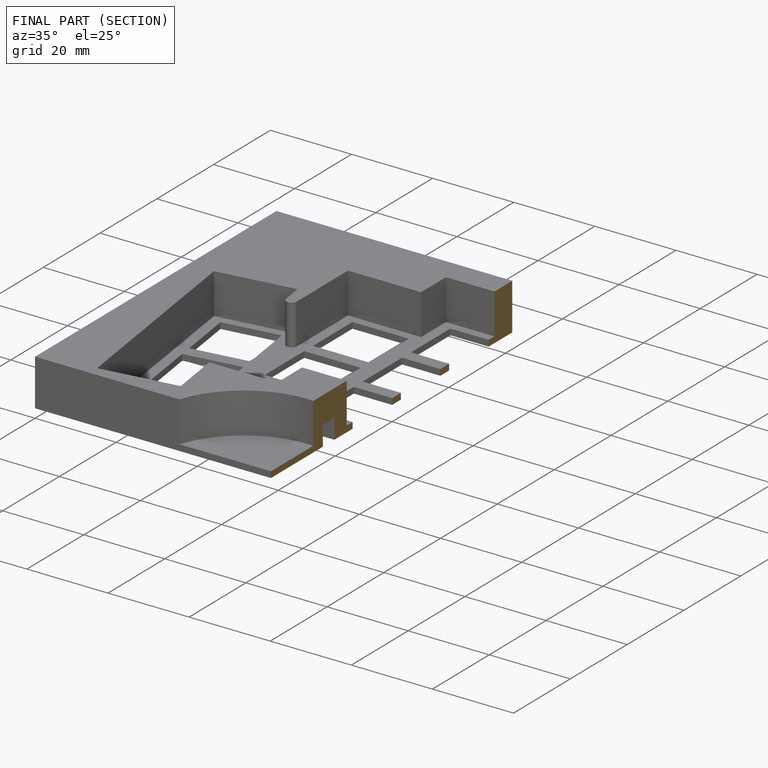
[diagram: finished part — half-section view (interior)]
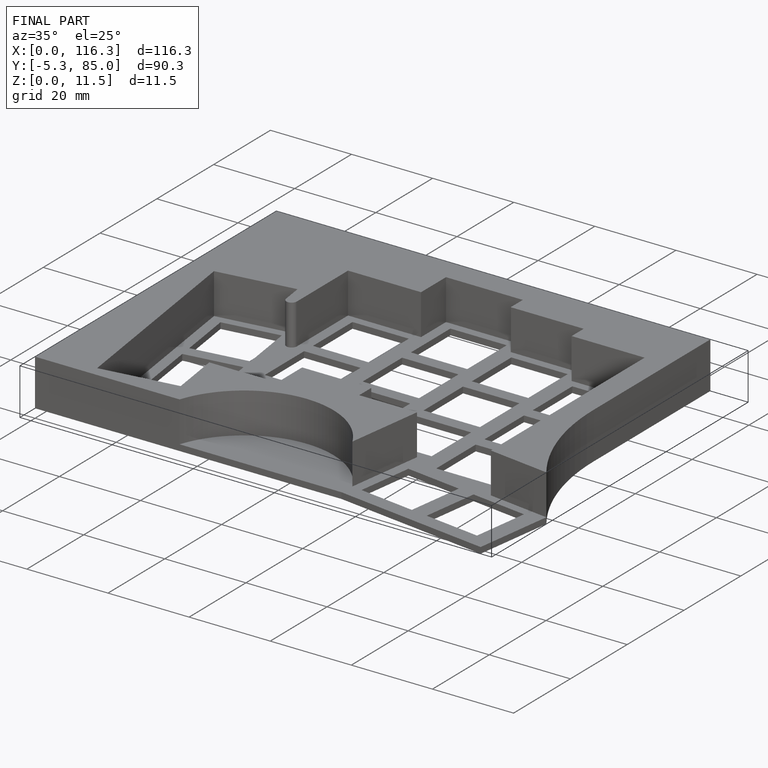
[diagram: finished part — iso view with bounding-box wireframe]
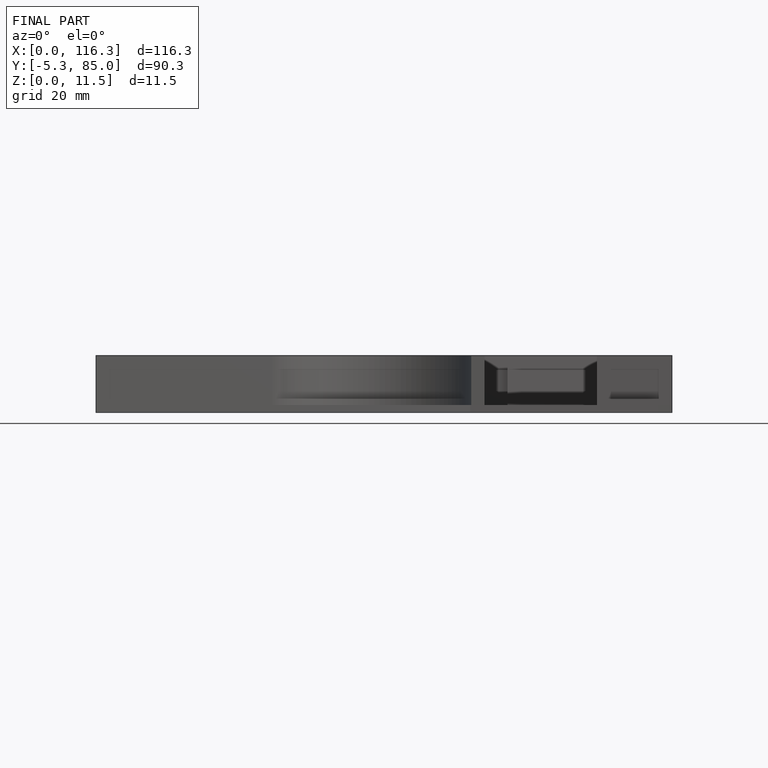
[diagram: finished part — front view with bounding-box wireframe]
